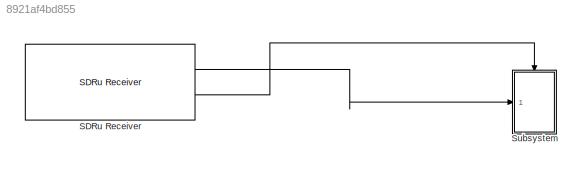
MODEL slx_8921af4bd855
KIND model
CONFIG AbsTol = auto
CONFIG EnableMultiTasking = off
CONFIG FixedStep = auto
CONFIG MaxStep = auto
CONFIG MinStep = auto
CONFIG RelTol = 1e-3
CONFIG SampleTimeConstraint = Unconstrained
CONFIG Solver = FixedStepDiscrete
CONFIG SolverName = FixedStepDiscrete
CONFIG StartTime = 0.0
CONFIG StopTime = inf
BLOCK [Reference] SDRu Receiver  REF=commsdrhw_v2/SDRu Receiver
  Ports = [0, 2]
  SourceBlock = commsdrhw_v2/SDRu Receiver
  SourceProductBaseCode = USRP
  SourceProductName = Communications System Toolbox Support Package for USRP(R) Radio
  SourceType = SDRu Receiver
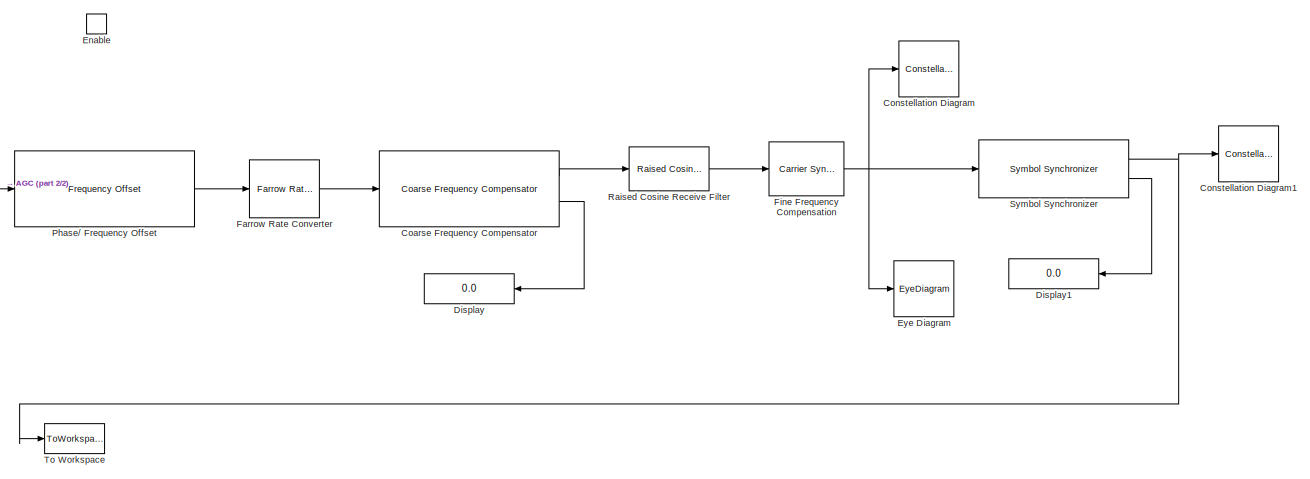
[diagram: Subsystem - part 1/2, most of the canvas]
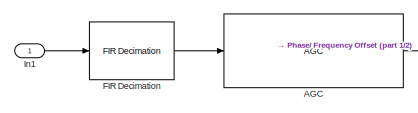
[diagram: Subsystem - part 2/2, middle left region]
BLOCK [SubSystem] Subsystem
  Ports = [1, 0, 1]
  RequestExecContextInheritance = off
BLOCK [Reference] Subsystem/AGC  REF=commrfcorlib/AGC
  Ports = [1, 1]
  SourceBlock = commrfcorlib/AGC
  SourceProductBaseCode = CM
  SourceProductName = Communications System Toolbox
  SourceType = AGC
BLOCK [Reference] Subsystem/Coarse Frequency Compensator  REF=commrfcorlib/Coarse Frequency
Compensator
  Ports = [1, 2]
  SourceBlock = commrfcorlib/Coarse Frequency\nCompensator
  SourceProductBaseCode = CM
  SourceProductName = Communications System Toolbox
  SourceType = Coarse Frequency Compensator
BLOCK [ConstellationDiagram] Subsystem/Constellation Diagram
  Ports = [1]
  ScopeSpecificationString = comm.scopes.ConstellationDiagramBlockCfg('CurrentConfiguration', extmgr.ConfigurationSet(extmgr.Configuration('Core','General UI',true),extmgr.Configuration('Core','Source UI',true),extmgr.Configuration('Sources','WiredSimulink',true),extmgr.Configuration('Sources','SimulinkEvent',false),extmgr.Configuration('Sources','SPTool',false),extmgr.Configuration('Sources','File',false),extmgr.Configuratio...<+1960ch>
BLOCK [ConstellationDiagram] Subsystem/Constellation Diagram1
  Ports = [1]
  ScopeSpecificationString = comm.scopes.ConstellationDiagramBlockCfg('CurrentConfiguration', extmgr.ConfigurationSet(extmgr.Configuration('Core','General UI',true),extmgr.Configuration('Core','Source UI',true),extmgr.Configuration('Sources','WiredSimulink',true),extmgr.Configuration('Sources','SimulinkEvent',false),extmgr.Configuration('Sources','SPTool',false),extmgr.Configuration('Sources','File',false),extmgr.Configuratio...<+1967ch>
BLOCK [Display] Subsystem/Display
  Decimation = 200
  Ports = [1]
BLOCK [Display] Subsystem/Display1
  Decimation = 200
  Ports = [1]
BLOCK [EnablePort] Subsystem/Enable
  Ports = []
  PropagateVarSize = During execution
BLOCK [EyeDiagram] Subsystem/Eye Diagram
  Ports = [1]
  ScopeSpecificationString = comm.scopes.EyeDiagramBlockCfg('CurrentConfiguration', extmgr.ConfigurationSet(extmgr.Configuration('Core','General UI',true),extmgr.Configuration('Core','Source UI',true),extmgr.Configuration('Sources','WiredSimulink',true),extmgr.Configuration('Sources','Workspace',false),extmgr.Configuration('Sources','SPTool',false),extmgr.Configuration('Sources','Simulink',false),extmgr.Configuration('Sources...<+1551ch>
BLOCK [Reference] Subsystem/FIR Decimation  REF=dspmlti4/FIR
Decimation
  Ports = [1, 1]
  SourceBlock = dspmlti4/FIR\nDecimation
  SourceProductBaseCode = DS
  SourceProductName = DSP System Toolbox
  SourceType = FIR Decimation
  UserDataPersistent = on
BLOCK [Reference] Subsystem/Farrow Rate Converter  REF=dspsigops/Farrow Rate
Converter
  Ports = [1, 1]
  SourceBlock = dspsigops/Farrow Rate\nConverter
  SourceProductBaseCode = DS
  SourceProductName = DSP System Toolbox
  SourceType = dsp.FarrowRateConverter
BLOCK [Reference] Subsystem/Fine Frequency Compensation  REF=commsync2/Carrier Synchronizer
  Ports = [1, 1]
  SourceBlock = commsync2/Carrier Synchronizer
  SourceProductBaseCode = CM
  SourceProductName = Communications Toolbox
  SourceType = Carrier Synchronizer
BLOCK [Inport] Subsystem/In1
  IconDisplay = Port number
BLOCK [Reference] Subsystem/Phase// Frequency Offset  REF=commrflib2/Phase//
Frequency
Offset
  Ports = [1, 1]
  SourceBlock = commrflib2/Phase//\nFrequency\nOffset
  SourceProductBaseCode = CM
  SourceProductName = Communications System Toolbox
  SourceType = Phase/Frequency Offset
BLOCK [Reference] Subsystem/Raised Cosine Receive Filter  REF=commfilt2/Raised Cosine
Receive Filter
  Ports = [1, 1]
  SourceBlock = commfilt2/Raised Cosine\nReceive Filter
  SourceProductBaseCode = CM
  SourceProductName = Communications Toolbox
  SourceType = Raised Cosine Receive Filter
  UserDataPersistent = on
BLOCK [Reference] Subsystem/Symbol Synchronizer  REF=commsync2/Symbol Synchronizer
  Ports = [1, 2]
  SourceBlock = commsync2/Symbol Synchronizer
  SourceProductBaseCode = CM
  SourceProductName = Communications System Toolbox
  SourceType = Symbol Synchronizer
BLOCK [ToWorkspace] Subsystem/To Workspace
  FixptAsFi = on
  MaxDataPoints = inf
  Ports = [1]
  SampleTime = -1
  Save2DSignal = 3-D array (concatenate along third dimension)
  SaveFormat = Structure
  VariableName = simout
LINE SDRu Receiver:1 -> Subsystem:1
LINE SDRu Receiver:2 -> Subsystem:enable
LINE Subsystem/AGC:1 -> Subsystem/Phase// Frequency Offset:1
LINE Subsystem/Coarse Frequency Compensator:1 -> Subsystem/Raised Cosine Receive Filter:1
LINE Subsystem/Coarse Frequency Compensator:2 -> Subsystem/Display:1
LINE Subsystem/FIR Decimation:1 -> Subsystem/AGC:1
LINE Subsystem/Farrow Rate Converter:1 -> Subsystem/Coarse Frequency Compensator:1
NET Subsystem/Fine Frequency Compensation:1 -> Subsystem/Constellation Diagram:1, Subsystem/Eye Diagram:1, Subsystem/Symbol Synchronizer:1
LINE Subsystem/In1:1 -> Subsystem/FIR Decimation:1
LINE Subsystem/Phase// Frequency Offset:1 -> Subsystem/Farrow Rate Converter:1
LINE Subsystem/Raised Cosine Receive Filter:1 -> Subsystem/Fine Frequency Compensation:1
NET Subsystem/Symbol Synchronizer:1 -> Subsystem/Constellation Diagram1:1, Subsystem/To Workspace:1
LINE Subsystem/Symbol Synchronizer:2 -> Subsystem/Display1:1
note: NET lines group one-source signal fan-out (src -> all destinations, sorted); 1:1 wires keep LINE
